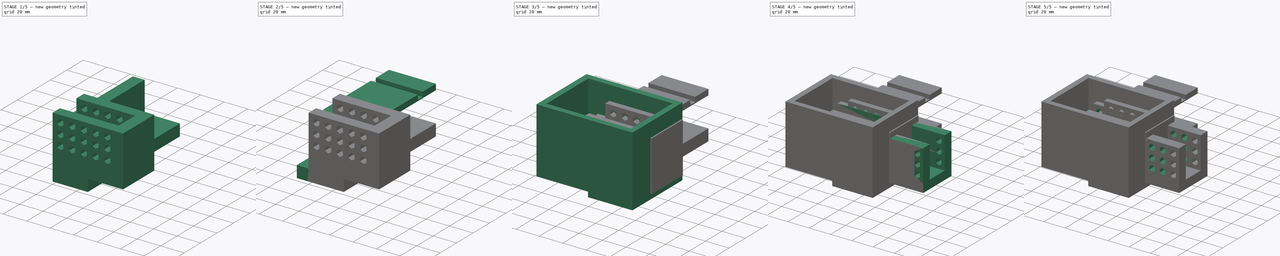
[diagram: build sequence overview — one tinted view per stage of 5, left to right]
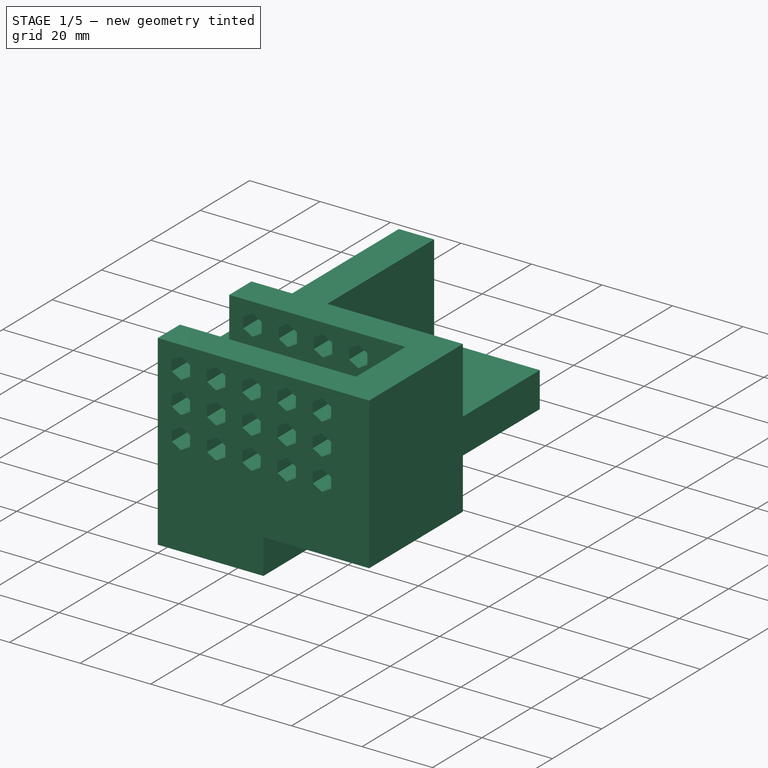
[diagram: stage 1 of 5 — iso view after this stage's code; geometry added in this stage tinted green]
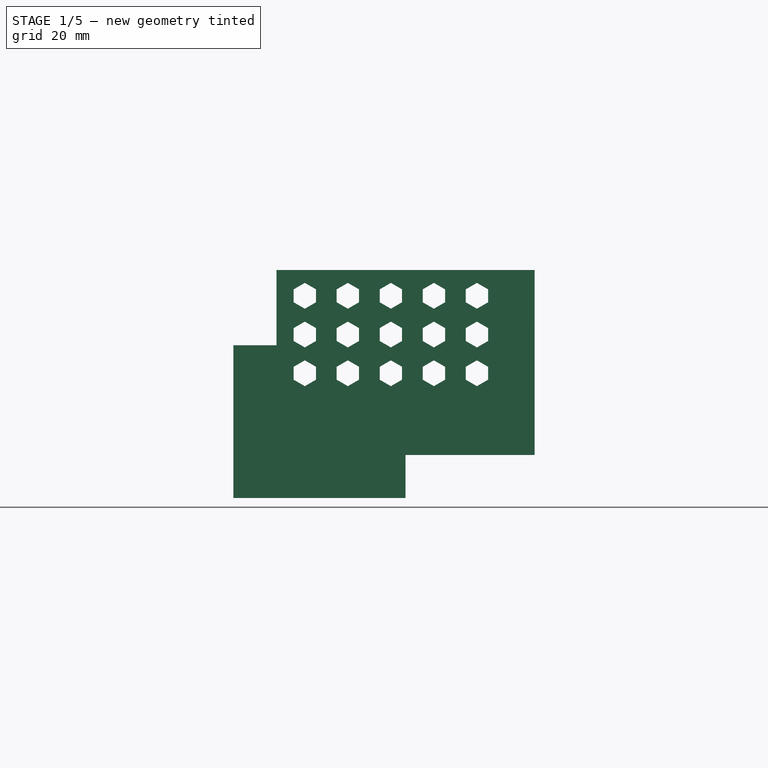
[diagram: stage 1 of 5 — front view after this stage's code; geometry added in this stage tinted green]
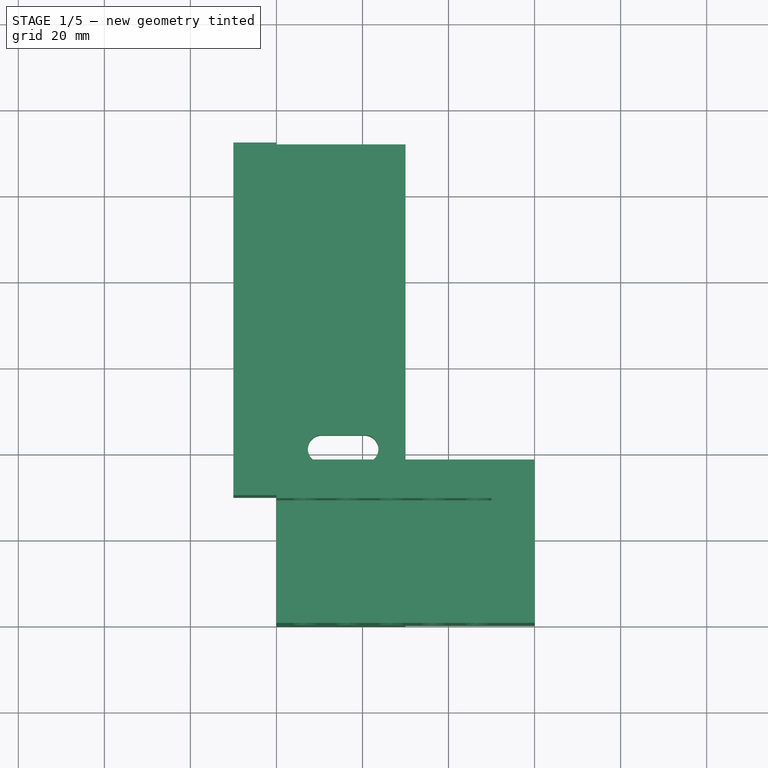
[diagram: stage 1 of 5 — top view after this stage's code; geometry added in this stage tinted green]
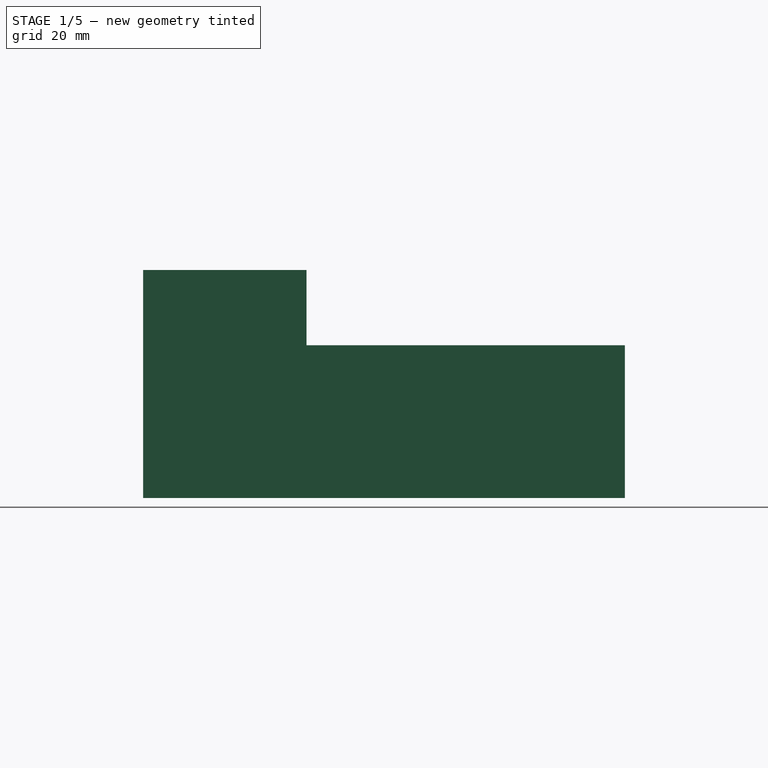
[diagram: stage 1 of 5 — right view after this stage's code; geometry added in this stage tinted green]
FCSTD DOCUMENT  (FreeCAD 1.0R39109 (Git))
Label: LedLight Button Holder
License: All rights reserved
LicenseURL: http://en.wikipedia.org/wiki/All_rights_reserved
objects: Sketcher::SketchObject×16, PartDesign::Pocket×12, PartDesign::AdditiveBox×9, PartDesign::Body×6, PartDesign::SubtractiveBox×5, PartDesign::Pad×4, PartDesign::LinearPattern×2, PartDesign::Fillet×1, PartDesign::SubtractiveCylinder×1
note: 138 computed .brp shape members not serialized (recipe doc carries the construction recipe); baked Part::Feature solids carry a one-line shape summary decoded from their .brp

FEATURE [PartDesign::Body] Body002  label="cover"
  AllowCompound = false
  Group = -> [Box003,Box004]
  Origin = -> Origin002
  Placement = pos=(-29.3,-38.5,9) rot=(0,0,1;1.5708rad)
  Tip = -> Box004
FEATURE [Sketcher::SketchObject] Sketch002
  ArcFitTolerance = 1e-06
  AttachmentSupport = -> [XY_Plane004]
  FullyConstrained = true
  MakeInternals = false
  MapMode = 5
  sketch-geometry (14):
    g0: LineSegment StartX=0 StartY=0 StartZ=0 EndX=30 EndY=0 EndZ=0
    g1: LineSegment StartX=30 StartY=0 StartZ=0 EndX=30 EndY=112 EndZ=0
    g2: LineSegment StartX=-10 StartY=112 StartZ=0 EndX=30 EndY=112 EndZ=0
    g3: LineSegment StartX=0 StartY=0 StartZ=0 EndX=0 EndY=30 EndZ=0
    g4: LineSegment StartX=-10 StartY=30 StartZ=0 EndX=0 EndY=30 EndZ=0
    g5: LineSegment StartX=-10 StartY=112 StartZ=0 EndX=-10 EndY=30 EndZ=0
    g6: ArcOfCircle CenterX=10.5 CenterY=8.7 CenterZ=0 NormalX=0 NormalY=0 NormalZ=1 AngleXU=0 Radius=3.2 StartAngle=1.5708 EndAngle=4.71239
    g7: ArcOfCircle CenterX=20.5 CenterY=8.7 CenterZ=0 NormalX=0 NormalY=0 NormalZ=1 AngleXU=0 Radius=3.2 StartAngle=4.71239 EndAngle=7.85398
    g8: LineSegment StartX=10.5 StartY=11.9 StartZ=0 EndX=20.5 EndY=11.9 EndZ=0
    g9: LineSegment StartX=10.5 StartY=5.5 StartZ=0 EndX=20.5 EndY=5.5 EndZ=0
    g10: ArcOfCircle CenterX=10.5 CenterY=41.2 CenterZ=0 NormalX=0 NormalY=0 NormalZ=1 AngleXU=0 Radius=3.2 StartAngle=1.5708 EndAngle=4.71239
    g11: ArcOfCircle CenterX=20.5 CenterY=41.2 CenterZ=0 NormalX=0 NormalY=0 NormalZ=1 AngleXU=0 Radius=3.2 StartAngle=4.71239 EndAngle=7.85398
    g12: LineSegment StartX=10.5 StartY=44.4 StartZ=0 EndX=20.5 EndY=44.4 EndZ=0
    g13: LineSegment StartX=10.5 StartY=38 StartZ=0 EndX=20.5 EndY=38 EndZ=0
  constraints (37):
    c: Distance(g0) = 30
    c: Coincident(g0,g-1)
    c: PointOnObject(g0,g-1)
    c: Distance(g1) = 112
    c: Vertical(g1)
    c: Horizontal(g2)
    c: Coincident(g0,g1)
    c: Coincident(g1,g2)
    c: Distance(g3) = 30
    c: Vertical(g3)
    c: Coincident(g0,g3)
    c: Horizontal(g4)
    c: Coincident(g3,g4)
    c: Coincident(g4,g5)
    c: Coincident(g2,g5)
    c: Tangent(g6,g8) = 1.5708
    c: Tangent(g6,g9) = -1.5708
    c: Tangent(g7,g8) = 1.5708
    c: Tangent(g7,g9) = -1.5708
    c: Equal(g6,g7)
    c: Horizontal(g9)
    c: Distance(g6,g7) = 10
    c: Radius(g6) = 3.2
    c: Distance(g6,g0) = 5.5
    c: Distance(g6,g3) = 10.5
    c: Tangent(g10,g12) = 1.5708
    c: Tangent(g10,g13) = -1.5708
    c: Tangent(g11,g12) = 1.5708
    c: Tangent(g11,g13) = -1.5708
    c: Equal(g10,g11)
    c: Horizontal(g13)
    c: Distance(g10,g11) = 10
    c: Radius(g10) = 3.2
    c: Distance(g10,g-2) = 10.5
    c: Distance(g10,g-1) = 38
    c: DistanceX(g4,g4) = 10
    c: DistanceX(g2,g2) = 40
FEATURE [PartDesign::Pad] Pad
  Direction = (0,0,1)
  Length = 10
  Length2 = 10
  Profile = -> Sketch002
  ReferenceAxis = -> Sketch002 [N_Axis]
  Reversed = true
  Suppressed = false
  Type = 0
FEATURE [Sketcher::SketchObject] Sketch003
  ArcFitTolerance = 1e-06
  AttachmentSupport = -> [Pad]
  FullyConstrained = true
  MakeInternals = false
  MapMode = 5
  sketch-geometry (4):
    g0: LineSegment StartX=-10 StartY=112 StartZ=0 EndX=-10 EndY=30 EndZ=0
    g1: LineSegment StartX=-10 StartY=30 StartZ=0 EndX=0 EndY=30 EndZ=0
    g2: LineSegment StartX=0 StartY=30 StartZ=0 EndX=0 EndY=112 EndZ=0
    g3: LineSegment StartX=0 StartY=112 StartZ=0 EndX=-10 EndY=112 EndZ=0
  constraints (12):
    c: Coincident(g0,g1)
    c: Coincident(g1,g2)
    c: Coincident(g2,g3)
    c: Coincident(g3,g0)
    c: Vertical(g0)
    c: Vertical(g2)
    c: Horizontal(g1)
    c: Horizontal(g3)
    c: PointOnObject(g1,g-2)
    c: Distance(g-1,g1) = 30
    c: DistanceX(g1,g1) = 10
    c: DistanceY(g0,g0) = 82
FEATURE [PartDesign::Pad] Pad001
  BaseFeature = -> Pad
  Direction = (0,0,1)
  Length = 25.5
  Length2 = 10
  Profile = -> Sketch003
  ReferenceAxis = -> Sketch003 [N_Axis]
  Suppressed = false
  Type = 0
FEATURE [PartDesign::Body] Body004  label="desk bracket"
  AllowCompound = false
  Group = -> [Sketch002,Pad,Sketch003,Pad001,Sketch004,Pad002,Sketch009,Pocket005,Sketch010,Pocket006,Sketch011,Pocket007,Fillet,Box019,Box020]
  Origin = -> Origin004
  Placement = pos=(-19.3,-72.5,-20.5) rot=(0,0,1;0rad)
  Tip = -> Box020
FEATURE [PartDesign::AdditiveBox] Box021
  AttacherType = Attacher::AttachEngine3D
  AttachmentSupport = -> [XY_Plane006]
  Height = 13
  Length = 60
  MapMode = 5
  Refine = true
  Suppressed = false
  Width = 38
FEATURE [Sketcher::SketchObject] Sketch014
  ArcFitTolerance = 1e-06
  AttachmentSupport = -> [Box021]
  FullyConstrained = true
  MakeInternals = false
  MapMode = 5
  Placement = pos=(0,0,13) rot=(0,0,1;0rad)
  sketch-geometry (8):
    g0: LineSegment StartX=0 StartY=38 StartZ=0 EndX=0 EndY=29 EndZ=0
    g1: LineSegment StartX=60 StartY=38 StartZ=0 EndX=0 EndY=38 EndZ=0
    g2: LineSegment StartX=0 StartY=9 StartZ=0 EndX=0 EndY=0 EndZ=0
    g3: LineSegment StartX=0 StartY=0 StartZ=0 EndX=60 EndY=0 EndZ=0
    g4: LineSegment StartX=60 StartY=0 StartZ=0 EndX=60 EndY=38 EndZ=0
    g5: LineSegment StartX=0 StartY=9 StartZ=0 EndX=50 EndY=9 EndZ=0
    g6: LineSegment StartX=0 StartY=29 StartZ=0 EndX=50 EndY=29 EndZ=0
    g7: LineSegment StartX=50 StartY=29 StartZ=0 EndX=50 EndY=9 EndZ=0
  constraints (23):
    c: Coincident(g1,g0)
    c: Vertical(g0)
    c: Horizontal(g1)
    c: Coincident(g2,g3)
    c: Coincident(g3,g4)
    c: Vertical(g2)
    c: Horizontal(g3)
    c: Coincident(g2,g-1)
    c: DistanceX(g3,g3) = 60
    c: DistanceX(g1,g1) = 60
    c: PointOnObject(g0,g-2)
    c: Coincident(g4,g1)
    c: DistanceY(g2,g2) = 9
    c: DistanceY(g0,g0) = 9
    c: DistanceY(g4,g4) = 38
    c: Distance(g5) = 50
    c: Horizontal(g5)
    c: Horizontal(g6)
    c: Equal(g5,g6)
    c: Coincident(g2,g5)
    c: Coincident(g0,g6)
    c: Coincident(g6,g7)
    c: Coincident(g5,g7)
FEATURE [PartDesign::Pad] Pad003
  BaseFeature = -> Box021
  Direction = (0,0,1)
  Length = 30
  Length2 = 10
  Profile = -> Sketch014
  ReferenceAxis = -> Sketch014 [N_Axis]
  Refine = true
  Suppressed = false
  Type = 0
FEATURE [Sketcher::SketchObject] Sketch015
  ArcFitTolerance = 1e-06
  AttachmentSupport = -> [Pad003]
  FullyConstrained = true
  MakeInternals = false
  MapMode = 5
  Placement = pos=(0,0,0) rot=(1,0,0;1.5708rad)
  sketch-geometry (21):
    g0: LineSegment StartX=49.1962 StartY=38.5 StartZ=0 EndX=46.5981 EndY=40 EndZ=0
    g1: LineSegment StartX=46.5981 StartY=40 StartZ=0 EndX=44 EndY=38.5 EndZ=0
    g2: LineSegment StartX=44 StartY=38.5 StartZ=0 EndX=44 EndY=35.5 EndZ=0
    g3: LineSegment StartX=44 StartY=35.5 StartZ=0 EndX=46.5981 EndY=34 EndZ=0
    g4: LineSegment StartX=46.5981 StartY=34 StartZ=0 EndX=49.1962 EndY=35.5 EndZ=0
    g5: LineSegment StartX=49.1962 StartY=35.5 StartZ=0 EndX=49.1962 EndY=38.5 EndZ=0
    g6: Circle [constr] CenterX=46.5981 CenterY=37 CenterZ=0 NormalX=0 NormalY=0 NormalZ=1 AngleXU=0 Radius=3
    g7: LineSegment StartX=49.1962 StartY=29.5 StartZ=0 EndX=46.5981 EndY=31 EndZ=0
    g8: LineSegment StartX=46.5981 StartY=31 StartZ=0 EndX=44 EndY=29.5 EndZ=0
    g9: LineSegment StartX=44 StartY=29.5 StartZ=0 EndX=44 EndY=26.5 EndZ=0
    g10: LineSegment StartX=44 StartY=26.5 StartZ=0 EndX=46.5981 EndY=25 EndZ=0
    g11: LineSegment StartX=46.5981 StartY=25 StartZ=0 EndX=49.1962 EndY=26.5 EndZ=0
    g12: LineSegment StartX=49.1962 StartY=26.5 StartZ=0 EndX=49.1962 EndY=29.5 EndZ=0
    g13: Circle [constr] CenterX=46.5981 CenterY=28 CenterZ=0 NormalX=0 NormalY=0 NormalZ=1 AngleXU=0 Radius=3
    g14: LineSegment StartX=49.1962 StartY=20.5 StartZ=0 EndX=46.5981 EndY=22 EndZ=0
    g15: LineSegment StartX=46.5981 StartY=22 StartZ=0 EndX=44 EndY=20.5 EndZ=0
    g16: LineSegment StartX=44 StartY=20.5 StartZ=0 EndX=44 EndY=17.5 EndZ=0
    g17: LineSegment StartX=44 StartY=17.5 StartZ=0 EndX=46.5981 EndY=16 EndZ=0
    g18: LineSegment StartX=46.5981 StartY=16 StartZ=0 EndX=49.1962 EndY=17.5 EndZ=0
    g19: LineSegment StartX=49.1962 StartY=17.5 StartZ=0 EndX=49.1962 EndY=20.5 EndZ=0
    g20: Circle [constr] CenterX=46.5981 CenterY=19 CenterZ=0 NormalX=0 NormalY=0 NormalZ=1 AngleXU=0 Radius=3
  constraints (51):
    c: Coincident(g0,g1)
    c: Coincident(g1,g2)
    c: Coincident(g2,g3)
    c: Coincident(g3,g4)
    c: Coincident(g4,g5)
    c: Coincident(g5,g0)
    c: Equal(g0, g1-g5) x5
    c: PointOnObject(g0,g6)
    c: PointOnObject(g1,g6)
    c: PointOnObject(g2,g6)
    c: PointOnObject(g3,g6)
    c: PointOnObject(g4,g6)
    c: PointOnObject(g5,g6)
    c: Radius(g6) = 3
    c: Coincident(g7,g8)
    c: Coincident(g8,g9)
    c: Coincident(g9,g10)
    c: Coincident(g10,g11)
    c: Coincident(g11,g12)
    c: Coincident(g12,g7)
    c: Equal(g7, g8-g12) x5
    c: PointOnObject(g7,g13)
    c: PointOnObject(g8,g13)
    c: PointOnObject(g9,g13)
    c: PointOnObject(g10,g13)
    c: PointOnObject(g11,g13)
    c: PointOnObject(g12,g13)
    c: Radius(g13) = 3
    c: Coincident(g14,g15)
    c: Coincident(g15,g16)
    c: Coincident(g16,g17)
    c: Coincident(g17,g18)
    c: Coincident(g18,g19)
    c: Coincident(g19,g14)
    c: Equal(g14, g15-g19) x5
    c: PointOnObject(g14,g20)
    c: PointOnObject(g15,g20)
    c: PointOnObject(g16,g20)
    c: PointOnObject(g17,g20)
    c: PointOnObject(g18,g20)
    c: PointOnObject(g19,g20)
    c: Radius(g20) = 3
    c: Parallel(g2,g-2)
    c: DistanceY(g-1,g0) = 38.5
    c: Distance(g7,g3) = 3
    c: Distance(g10,g14) = 3
    c: Parallel(g9,g-2)
    c: Parallel(g16,g-2)
    c: Distance(g2,g-2) = 44
    c: Distance(g9,g-2) = 44
    c: Distance(g16,g-2) = 44
FEATURE [PartDesign::Pocket] Pocket010
  BaseFeature = -> Pad003
  Direction = (0,1,-2e-16)
  Length = 5
  Length2 = 5
  Profile = -> Sketch015
  ReferenceAxis = -> Sketch015 [N_Axis]
  Refine = true
  Suppressed = false
  Type = 1
FEATURE [PartDesign::LinearPattern] LinearPattern001
  BaseFeature = -> Pocket010
  Direction = -> Sketch015 [H_Axis]
  Length = 100
  Mode = 0
  Occurrences = 11
  Offset = 10
  Originals = -> [Pocket010]
  Refine = true
  Reversed = true
  Suppressed = false
  TransformMode = 0
FEATURE [Sketcher::SketchObject] Sketch016
  ArcFitTolerance = 1e-06
  AttachmentSupport = -> [LinearPattern001]
  FullyConstrained = true
  MakeInternals = false
  MapMode = 5
  Placement = pos=(0,38,0) rot=(0,0.707107,0.707107;3.14159rad)
  sketch-geometry (2):
    g0: Circle CenterX=-50 CenterY=6 CenterZ=0 NormalX=0 NormalY=0 NormalZ=1 AngleXU=0 Radius=2
    g1: Circle CenterX=-15 CenterY=6 CenterZ=0 NormalX=0 NormalY=0 NormalZ=1 AngleXU=0 Radius=2
  constraints (6):
    c: Diameter(g0) = 4
    c: Diameter(g1) = 4
    c: Distance(g1,g-2) = 15
    c: Distance(g0,g-2) = 50
    c: Distance(g0,g-1) = 6
    c: DistanceY(g-1,g1) = 6
FEATURE [PartDesign::Pocket] Pocket011
  BaseFeature = -> LinearPattern001
  Direction = (0,-1,2e-16)
  Length = 15
  Length2 = 5
  Profile = -> Sketch016
  ReferenceAxis = -> Sketch016 [N_Axis]
  Refine = true
  Suppressed = false
  Type = 0
FEATURE [PartDesign::Body] Body006  label="laptop bracket 2"
  AllowCompound = false
  Group = -> [Box021,Sketch014,Pad003,Sketch015,Pocket010,LinearPattern001,Sketch016,Pocket011]
  Origin = -> Origin006
  Placement = pos=(54,1.5,5) rot=(0,0,1;0rad)
  Tip = -> Pocket011
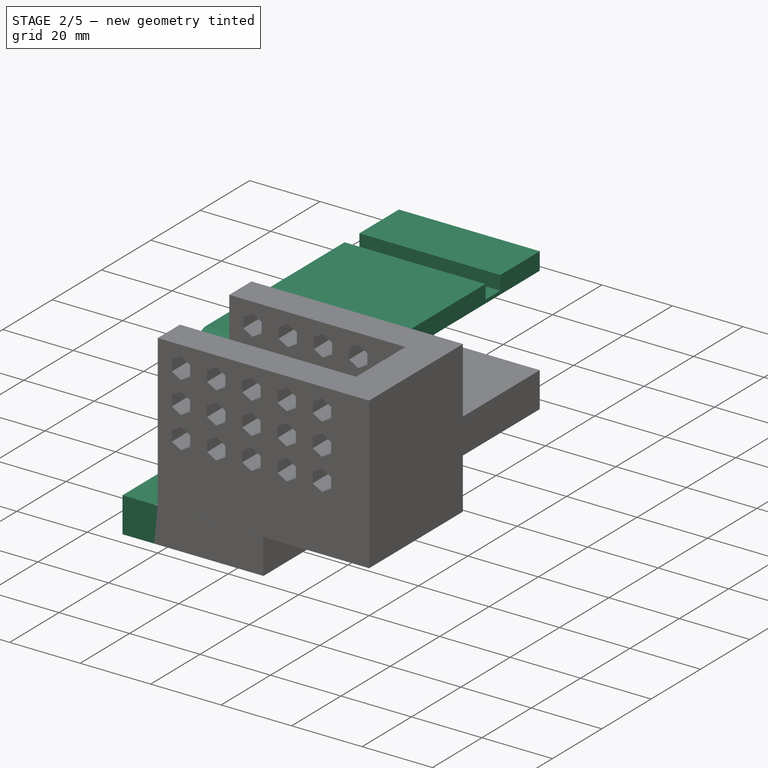
[diagram: stage 2 of 5 — iso view after this stage's code; geometry added in this stage tinted green]
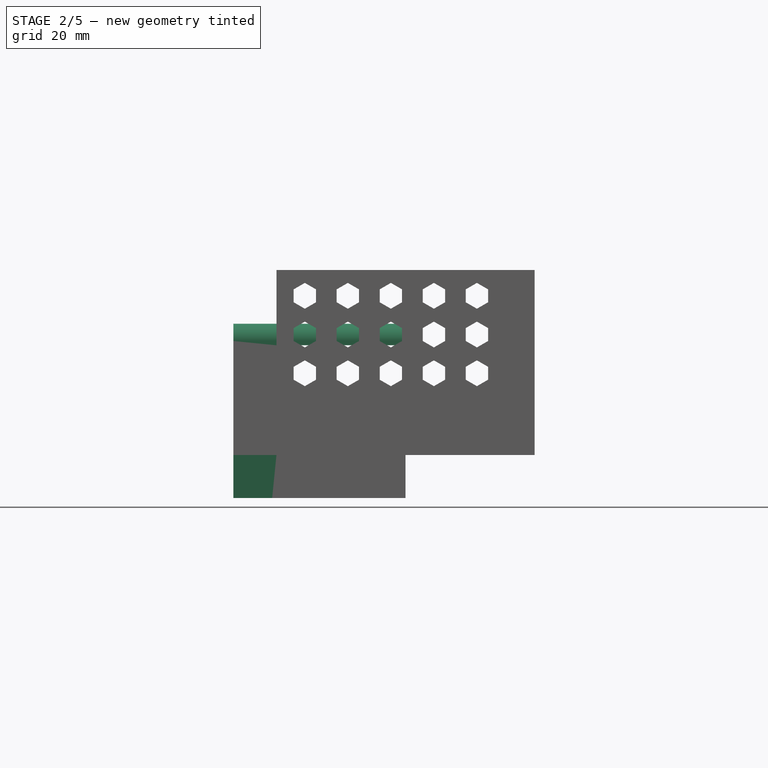
[diagram: stage 2 of 5 — front view after this stage's code; geometry added in this stage tinted green]
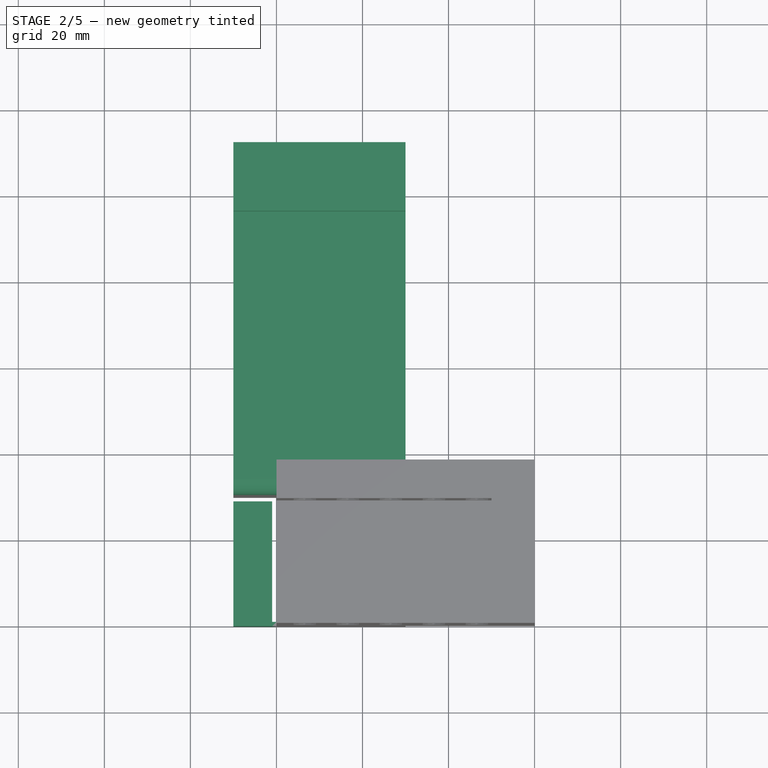
[diagram: stage 2 of 5 — top view after this stage's code; geometry added in this stage tinted green]
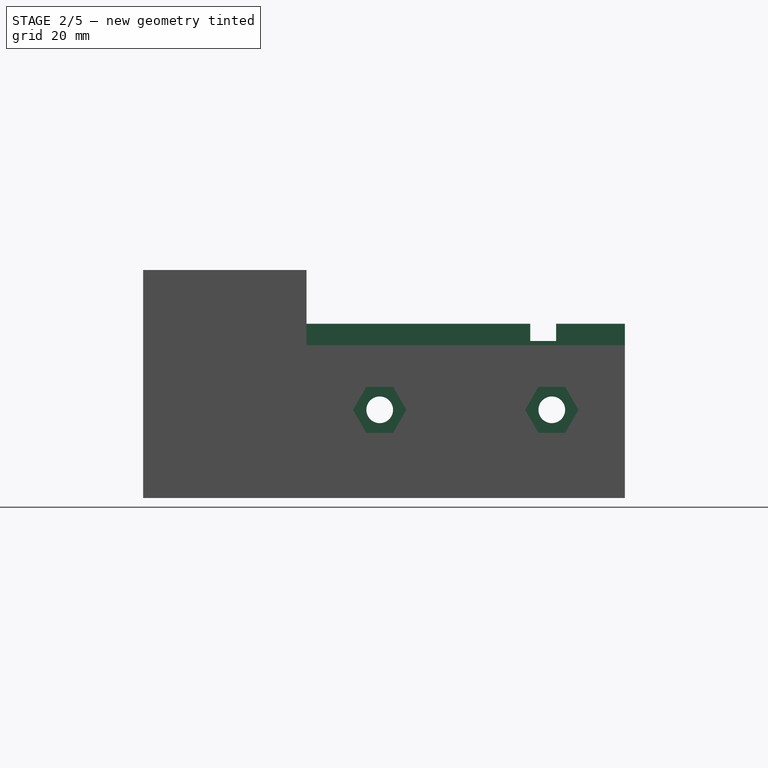
[diagram: stage 2 of 5 — right view after this stage's code; geometry added in this stage tinted green]
FEATURE [Sketcher::SketchObject] Sketch004
  ArcFitTolerance = 1e-06
  AttachmentSupport = -> [Pad001]
  FullyConstrained = true
  MakeInternals = false
  MapMode = 5
  Placement = pos=(0,0,25.5) rot=(0,0,1;0rad)
  sketch-geometry (4):
    g0: LineSegment StartX=-10 StartY=30 StartZ=0 EndX=30 EndY=30 EndZ=0
    g1: LineSegment StartX=30 StartY=30 StartZ=0 EndX=30 EndY=112 EndZ=0
    g2: LineSegment StartX=30 StartY=112 StartZ=0 EndX=-10 EndY=112 EndZ=0
    g3: LineSegment StartX=-10 StartY=112 StartZ=0 EndX=-10 EndY=30 EndZ=0
  constraints (12):
    c: Coincident(g0,g1)
    c: Coincident(g1,g2)
    c: Coincident(g2,g3)
    c: Coincident(g3,g0)
    c: Horizontal(g0)
    c: Horizontal(g2)
    c: Vertical(g1)
    c: Vertical(g3)
    c: DistanceX(g0,g0) = 40
    c: Distance(g0,g-1) = 30
    c: DistanceX(g0,g-1) = 10
    c: DistanceY(g3,g3) = 82
FEATURE [PartDesign::Pad] Pad002
  BaseFeature = -> Pad001
  Direction = (0,0,1)
  Length = 5
  Length2 = 10
  Profile = -> Sketch004
  ReferenceAxis = -> Sketch004 [N_Axis]
  Suppressed = false
  Type = 0
FEATURE [PartDesign::Body] Body005  label="laptop bracket 1"
  AllowCompound = false
  Group = -> [Box012,Box013,Box014,Sketch006,Pocket002,LinearPattern,Sketch007,Pocket003,Sketch008,Pocket004]
  Origin = -> Origin005
  Placement = pos=(-80.3,1.5,10) rot=(0,0,1;0rad)
  Tip = -> Pocket004
FEATURE [Sketcher::SketchObject] Sketch009
  ArcFitTolerance = 1e-06
  AttachmentSupport = -> [Pad002]
  FullyConstrained = true
  MakeInternals = false
  MapMode = 5
  Placement = pos=(0,0,30.5) rot=(0,0,1;0rad)
  sketch-geometry (4):
    g0: LineSegment StartX=-13 StartY=96 StartZ=0 EndX=-13 EndY=90 EndZ=0
    g1: LineSegment StartX=-13 StartY=90 StartZ=0 EndX=30 EndY=90 EndZ=0
    g2: LineSegment StartX=30 StartY=90 StartZ=0 EndX=30 EndY=96 EndZ=0
    g3: LineSegment StartX=30 StartY=96 StartZ=0 EndX=-13 EndY=96 EndZ=0
  constraints (12):
    c: Coincident(g0,g1)
    c: Coincident(g1,g2)
    c: Coincident(g2,g3)
    c: Coincident(g3,g0)
    c: Vertical(g0)
    c: Vertical(g2)
    c: Horizontal(g1)
    c: Horizontal(g3)
    c: Distance(g0,g2) = 43
    c: Distance(g1,g3) = 6
    c: Distance(g-1,g1) = 90
    c: Distance(g0,g-2) = 13
FEATURE [PartDesign::Pocket] Pocket005
  AlongSketchNormal = false
  BaseFeature = -> Pad002
  Direction = (0,0,-1)
  Length = 4
  Length2 = 5
  Offset = -2
  Profile = -> Sketch009
  ReferenceAxis = -> Sketch009 [N_Axis]
  Suppressed = false
  Type = 0
FEATURE [Sketcher::SketchObject] Sketch010
  ArcFitTolerance = 1e-06
  AttachmentSupport = -> [Pocket005]
  FullyConstrained = true
  MakeInternals = false
  MapMode = 5
  Placement = pos=(0,0,0) rot=(0.57735,0.57735,0.57735;2.0944rad)
  sketch-geometry (2):
    g0: Circle CenterX=55 CenterY=10.5 CenterZ=0 NormalX=0 NormalY=0 NormalZ=1 AngleXU=0 Radius=3.1
    g1: Circle CenterX=95 CenterY=10.5 CenterZ=0 NormalX=0 NormalY=0 NormalZ=1 AngleXU=0 Radius=3.1
  constraints (6):
    c: Diameter(g0) = 6.2
    c: Equal(g0,g1)
    c: DistanceX(g-1,g0) = 55
    c: DistanceX(g-1,g1) = 95
    c: DistanceY(g-1,g0) = 10.5
    c: DistanceY(g-1,g1) = 10.5
FEATURE [PartDesign::Pocket] Pocket006
  BaseFeature = -> Pocket005
  Direction = (-1,0,0)
  Length = 5
  Length2 = 5
  Profile = -> Sketch010
  ReferenceAxis = -> Sketch010 [N_Axis]
  Suppressed = false
  Type = 1
FEATURE [Sketcher::SketchObject] Sketch011
  ArcFitTolerance = 1e-06
  AttachmentSupport = -> [Pocket006]
  FullyConstrained = true
  MakeInternals = false
  MapMode = 5
  Placement = pos=(0,0,0) rot=(0.57735,0.57735,0.57735;2.0944rad)
  sketch-geometry (14):
    g0: LineSegment StartX=61.2 StartY=10.5 StartZ=0 EndX=58.1 EndY=15.8694 EndZ=0
    g1: LineSegment StartX=58.1 StartY=15.8694 StartZ=0 EndX=51.9 EndY=15.8694 EndZ=0
    g2: LineSegment StartX=51.9 StartY=15.8694 StartZ=0 EndX=48.8 EndY=10.5 EndZ=0
    g3: LineSegment StartX=48.8 StartY=10.5 StartZ=0 EndX=51.9 EndY=5.13064 EndZ=0
    g4: LineSegment StartX=51.9 StartY=5.13064 StartZ=0 EndX=58.1 EndY=5.13064 EndZ=0
    g5: LineSegment StartX=58.1 StartY=5.13064 StartZ=0 EndX=61.2 EndY=10.5 EndZ=0
    g6: Circle [constr] CenterX=55 CenterY=10.5 CenterZ=0 NormalX=0 NormalY=0 NormalZ=1 AngleXU=0 Radius=6.2
    g7: LineSegment StartX=101.2 StartY=10.5 StartZ=0 EndX=98.1 EndY=15.8694 EndZ=0
    g8: LineSegment StartX=98.1 StartY=15.8694 StartZ=0 EndX=91.9 EndY=15.8694 EndZ=0
    g9: LineSegment StartX=91.9 StartY=15.8694 StartZ=0 EndX=88.8 EndY=10.5 EndZ=0
    g10: LineSegment StartX=88.8 StartY=10.5 StartZ=0 EndX=91.9 EndY=5.13064 EndZ=0
    g11: LineSegment StartX=91.9 StartY=5.13064 StartZ=0 EndX=98.1 EndY=5.13064 EndZ=0
    g12: LineSegment StartX=98.1 StartY=5.13064 StartZ=0 EndX=101.2 EndY=10.5 EndZ=0
    g13: Circle [constr] CenterX=95 CenterY=10.5 CenterZ=0 NormalX=0 NormalY=0 NormalZ=1 AngleXU=0 Radius=6.2
  constraints (34):
    c: Coincident(g0,g1)
    c: Coincident(g1,g2)
    c: Coincident(g2,g3)
    c: Coincident(g3,g4)
    c: Coincident(g4,g5)
    c: Coincident(g5,g0)
    c: Equal(g0, g1-g5) x5
    c: PointOnObject(g0,g6)
    c: PointOnObject(g1,g6)
    c: PointOnObject(g2,g6)
    c: PointOnObject(g3,g6)
    c: PointOnObject(g4,g6)
    c: PointOnObject(g5,g6)
    c: Radius(g6) = 6.2
    c: DistanceY(g-1,g6) = 10.5
    c: DistanceX(g-1,g6) = 55
    c: Parallel(g4,g-1)
    c: Coincident(g7,g8)
    c: Coincident(g8,g9)
    c: Coincident(g9,g10)
    c: Coincident(g10,g11)
    c: Coincident(g11,g12)
    c: Coincident(g12,g7)
    c: Equal(g7, g8-g12) x5
    c: PointOnObject(g7,g13)
    c: PointOnObject(g8,g13)
    c: PointOnObject(g9,g13)
    c: PointOnObject(g10,g13)
    c: PointOnObject(g11,g13)
    c: PointOnObject(g12,g13)
    c: Radius(g13) = 6.2
    c: Parallel(g11,g-1)
    c: DistanceY(g-1,g13) = 10.5
    c: DistanceX(g-1,g13) = 95
FEATURE [PartDesign::Pocket] Pocket007
  BaseFeature = -> Pocket006
  Direction = (-1,0,0)
  Length = 5
  Length2 = 5
  Profile = -> Sketch011
  ReferenceAxis = -> Sketch011 [N_Axis]
  Suppressed = false
  Type = 0
FEATURE [PartDesign::Fillet] Fillet
  Base = -> Pocket007 [Edge96]
  BaseFeature = -> Pocket007
  Radius = 4
  SupportTransform = false
  Suppressed = false
  UseAllEdges = false
FEATURE [PartDesign::Body] Body  label="socket"
  AllowCompound = false
  Group = -> [Sketch,Box,Box015,Pocket,Box016,Box017,Box018,Cylinder,Sketch012,Pocket008,Sketch013,Pocket009]
  Origin = -> Origin
  Placement = pos=(-68.5,-19.3,5.5) rot=(0.707107,0.707107,0;3.14159rad)
  Tip = -> Pocket009
FEATURE [PartDesign::AdditiveBox] Box019
  AttacherType = Attacher::AttachEngine3D
  AttachmentOffset = pos=(-10,0,-10) rot=(0,0,1;0rad)
  AttachmentSupport = -> [XY_Plane004]
  BaseFeature = -> Fillet
  Height = 10
  Length = 10
  MapMode = 5
  Placement = pos=(-10,0,-10) rot=(0,0,1;0rad)
  Suppressed = false
  Width = 1
FEATURE [PartDesign::AdditiveBox] Box020
  AttacherType = Attacher::AttachEngine3D
  AttachmentOffset = pos=(-10,0,-10) rot=(0,0,1;0rad)
  AttachmentSupport = -> [XY_Plane004]
  BaseFeature = -> Box019
  Height = 10
  Length = 9
  MapMode = 5
  Placement = pos=(-10,0,-10) rot=(0,0,1;0rad)
  Suppressed = false
  Width = 29
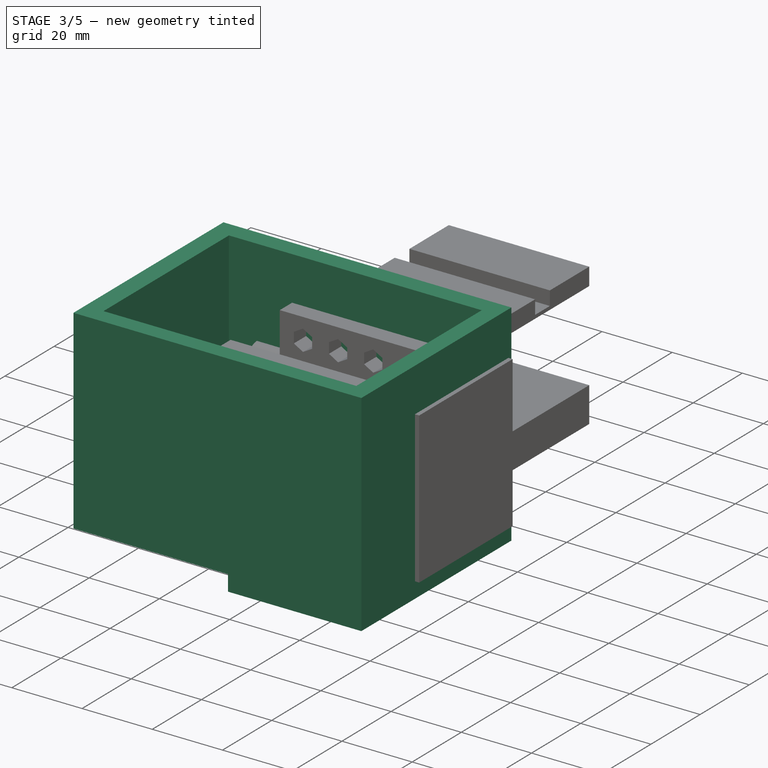
[diagram: stage 3 of 5 — iso view after this stage's code; geometry added in this stage tinted green]
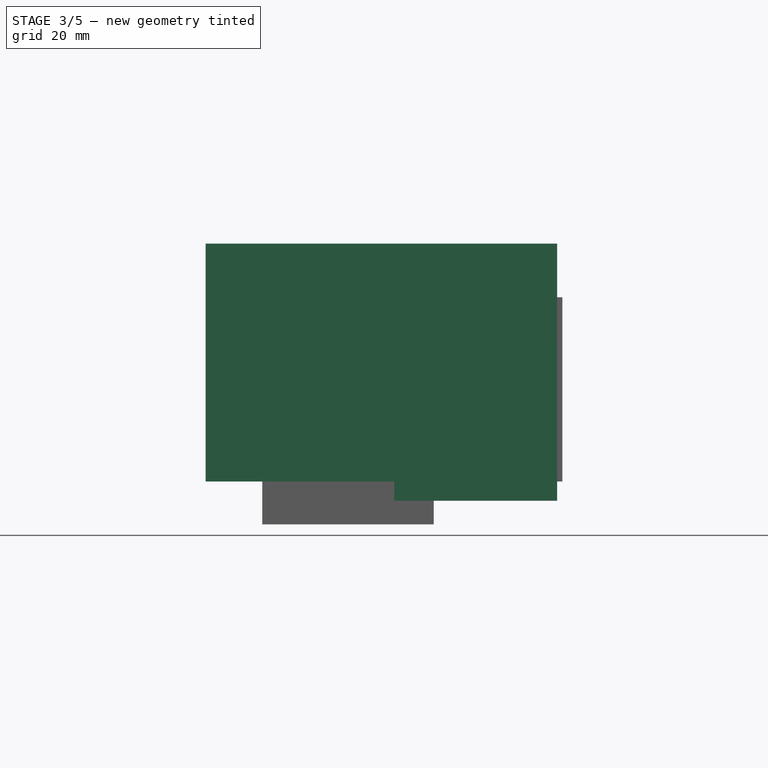
[diagram: stage 3 of 5 — front view after this stage's code; geometry added in this stage tinted green]
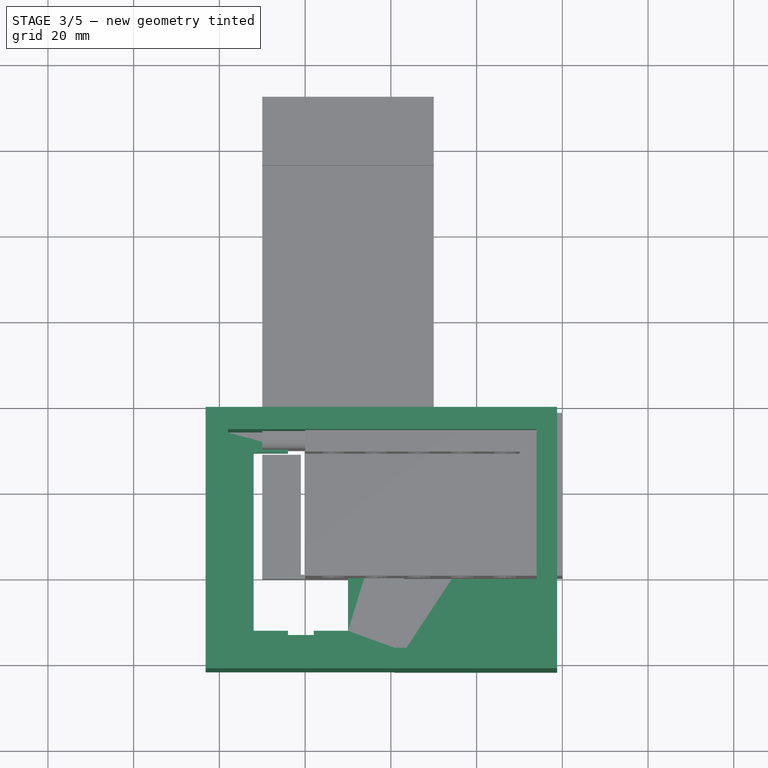
[diagram: stage 3 of 5 — top view after this stage's code; geometry added in this stage tinted green]
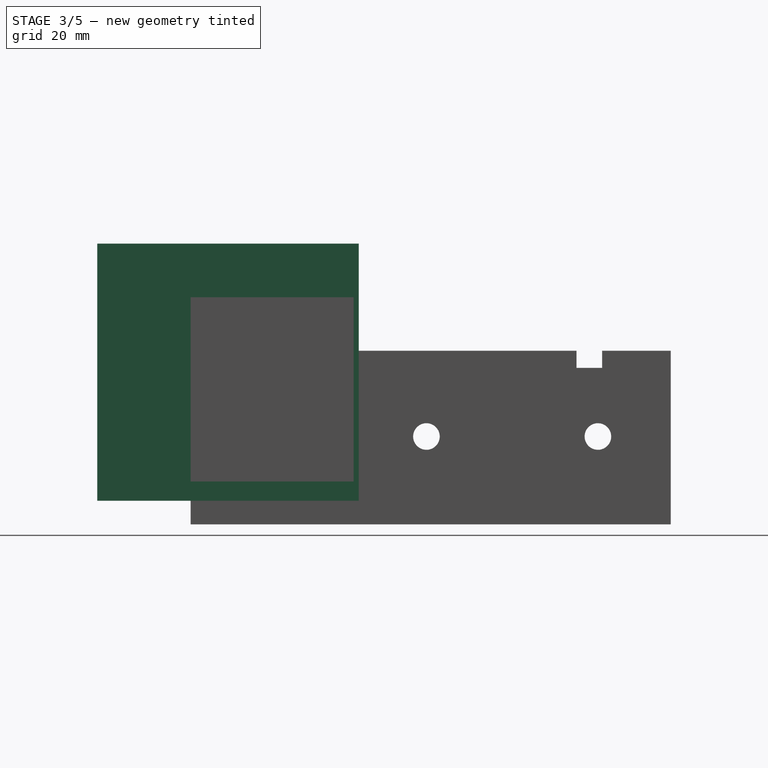
[diagram: stage 3 of 5 — right view after this stage's code; geometry added in this stage tinted green]
FEATURE [Sketcher::SketchObject] Sketch
  ArcFitTolerance = 0
  AttachmentSupport = -> [XY_Plane]
  FullyConstrained = true
  MakeInternals = false
  MapMode = 5
  sketch-geometry (12):
    g0: LineSegment StartX=-12 StartY=29.25 StartZ=0 EndX=-4 EndY=29.25 EndZ=0
    g1: LineSegment StartX=2 StartY=29.25 StartZ=0 EndX=10 EndY=29.25 EndZ=0
    g2: LineSegment StartX=-4 StartY=29.25 StartZ=0 EndX=-4 EndY=30.25 EndZ=0
    g3: LineSegment StartX=2 StartY=30.25 StartZ=0 EndX=2 EndY=29.25 EndZ=0
    g4: LineSegment StartX=-4 StartY=30.25 StartZ=0 EndX=2 EndY=30.25 EndZ=0
    g5: LineSegment StartX=10 StartY=29.25 StartZ=0 EndX=10 EndY=-12.25 EndZ=0
    g6: LineSegment StartX=-12 StartY=29.25 StartZ=0 EndX=-12 EndY=-12.25 EndZ=0
    g7: LineSegment StartX=-12 StartY=-12.25 StartZ=0 EndX=-4 EndY=-12.25 EndZ=0
    g8: LineSegment StartX=10 StartY=-12.25 StartZ=0 EndX=2 EndY=-12.25 EndZ=0
    g9: LineSegment StartX=2 StartY=-12.25 StartZ=0 EndX=2 EndY=-13.25 EndZ=0
    g10: LineSegment StartX=2 StartY=-13.25 StartZ=0 EndX=-4 EndY=-13.25 EndZ=0
    g11: LineSegment StartX=-4 StartY=-13.25 StartZ=0 EndX=-4 EndY=-12.25 EndZ=0
  constraints (37):
    c: Horizontal(g0)
    c: Horizontal(g1)
    c: Vertical(g2)
    c: Vertical(g6)
    c: Vertical(g11)
    c: Parallel(g6,g5)
    c: Equal(g6,g5)
    c: DistanceY(g5,g5) = 41.5
    c: Parallel(g0,g7)
    c: Parallel(g7,g8)
    c: Equal(g1,g0)
    c: Equal(g0,g7)
    c: Equal(g7,g8)
    c: Coincident(g5,g1)
    c: DistanceX(g1,g1) = 8
    c: DistanceY(g-1,g1) = 29.25
    c: DistanceX(g-1,g1) = 10
    c: Parallel(g-2,g3)
    c: Parallel(g2,g9)
    c: Equal(g3,g2)
    c: Equal(g2,g9)
    c: Equal(g9,g11)
    c: DistanceY(g3,g3) = 1
    c: Coincident(g1,g3)
    c: Parallel(g4,g-1)
    c: Parallel(g4,g10)
    c: Equal(g4,g10)
    c: Coincident(g3,g4)
    c: DistanceX(g4,g4) = 6
    c: Coincident(g4,g2)
    c: Coincident(g2,g0)
    c: Coincident(g0,g6)
    c: Coincident(g5,g8)
    c: Coincident(g8,g9)
    c: Coincident(g9,g10)
    c: Coincident(g10,g11)
    c: Coincident(g11,g7)
FEATURE [PartDesign::AdditiveBox] Box
  AttacherType = Attacher::AttachEngine3D
  AttachmentOffset = pos=(-23.2,-21.8,-4.5) rot=(0,0,1;0rad)
  AttachmentSupport = -> [XY_Plane]
  Height = 60
  Length = 82
  MapMode = 5
  Placement = pos=(-23.2,-21.8,-4.5) rot=(0,0,1;0rad)
  Suppressed = false
  Width = 61
FEATURE [PartDesign::SubtractiveBox] Box015
  AttacherType = Attacher::AttachEngine3D
  AttachmentOffset = pos=(-24,-22,-4.5) rot=(0,0,1;0rad)
  AttachmentSupport = -> [XY_Plane]
  BaseFeature = -> Box
  Height = 4.5
  Length = 44.8
  MapMode = 5
  Placement = pos=(-24,-22,-4.5) rot=(0,0,1;0rad)
  Suppressed = false
  Width = 61.2
FEATURE [PartDesign::Pocket] Pocket
  BaseFeature = -> Box015
  Direction = (0,0,-1)
  Length = 10
  Length2 = 5
  Placement = pos=(-24,-22,-4.5) rot=(0,0,1;0rad)
  Profile = -> Sketch
  ReferenceAxis = -> Sketch [N_Axis]
  Reversed = true
  Suppressed = false
  Type = 0
FEATURE [PartDesign::SubtractiveBox] Box016
  AttacherType = Attacher::AttachEngine3D
  AttachmentOffset = pos=(-18,-17,10) rot=(0,0,1;0rad)
  AttachmentSupport = -> [XY_Plane]
  BaseFeature = -> Pocket
  Height = 46
  Length = 72
  MapMode = 5
  Placement = pos=(-18,-17,10) rot=(0,0,1;0rad)
  Suppressed = false
  Width = 51
FEATURE [PartDesign::SubtractiveBox] Box017
  AttacherType = Attacher::AttachEngine3D
  AttachmentOffset = pos=(23,30,-6) rot=(0,0,1;0rad)
  AttachmentSupport = -> [XY_Plane]
  BaseFeature = -> Box016
  Height = 16
  Length = 31
  MapMode = 5
  Placement = pos=(23,30,-6) rot=(0,0,1;0rad)
  Suppressed = false
  Width = 10
FEATURE [PartDesign::SubtractiveBox] Box018
  AttacherType = Attacher::AttachEngine3D
  AttachmentOffset = pos=(23,-17,0) rot=(0,0,1;0rad)
  AttachmentSupport = -> [XY_Plane]
  BaseFeature = -> Box017
  Height = 10
  Length = 31
  MapMode = 5
  Placement = pos=(23,-17,0) rot=(0,0,1;0rad)
  Suppressed = false
  Width = 51
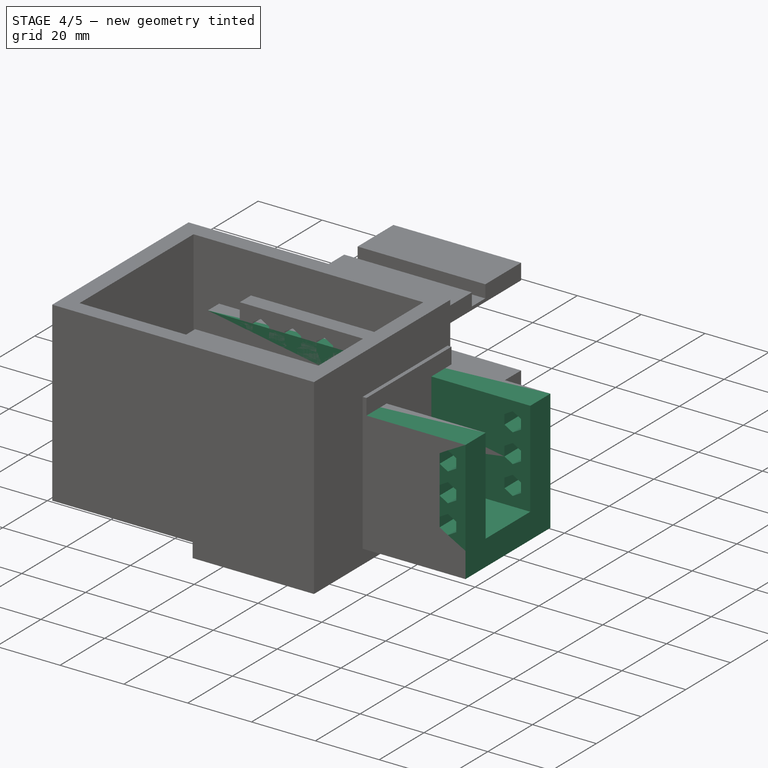
[diagram: stage 4 of 5 — iso view after this stage's code; geometry added in this stage tinted green]
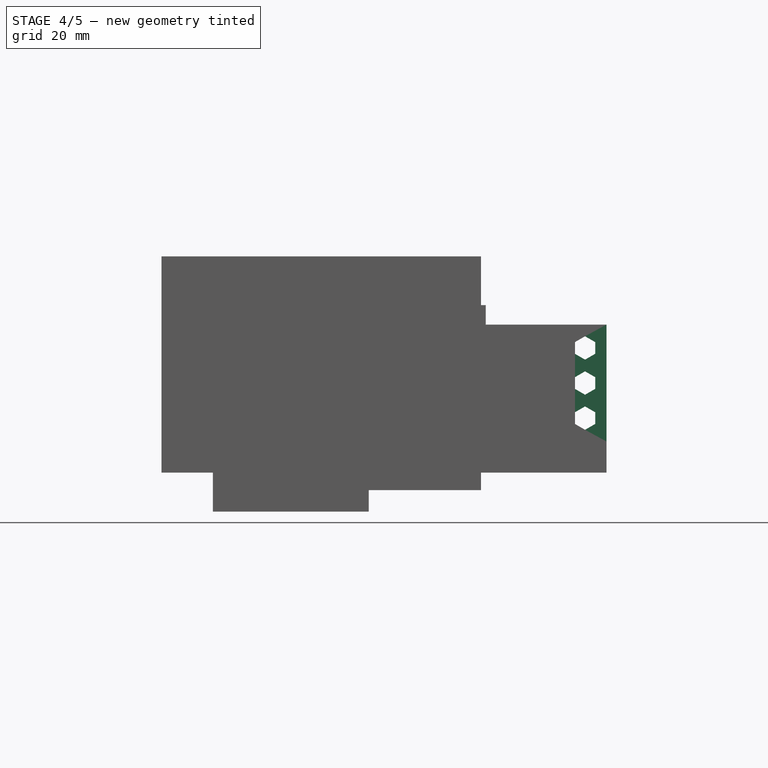
[diagram: stage 4 of 5 — front view after this stage's code; geometry added in this stage tinted green]
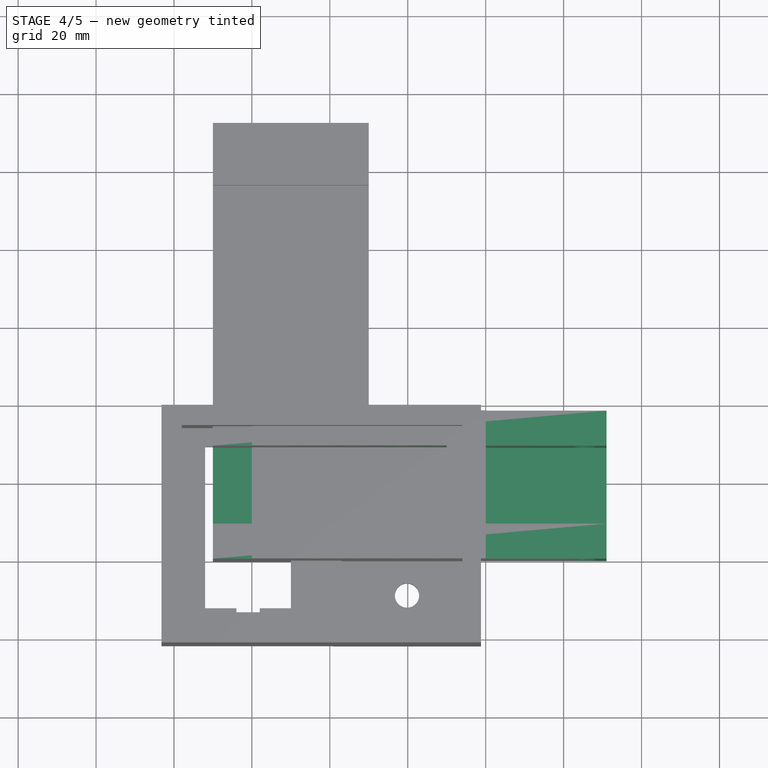
[diagram: stage 4 of 5 — top view after this stage's code; geometry added in this stage tinted green]
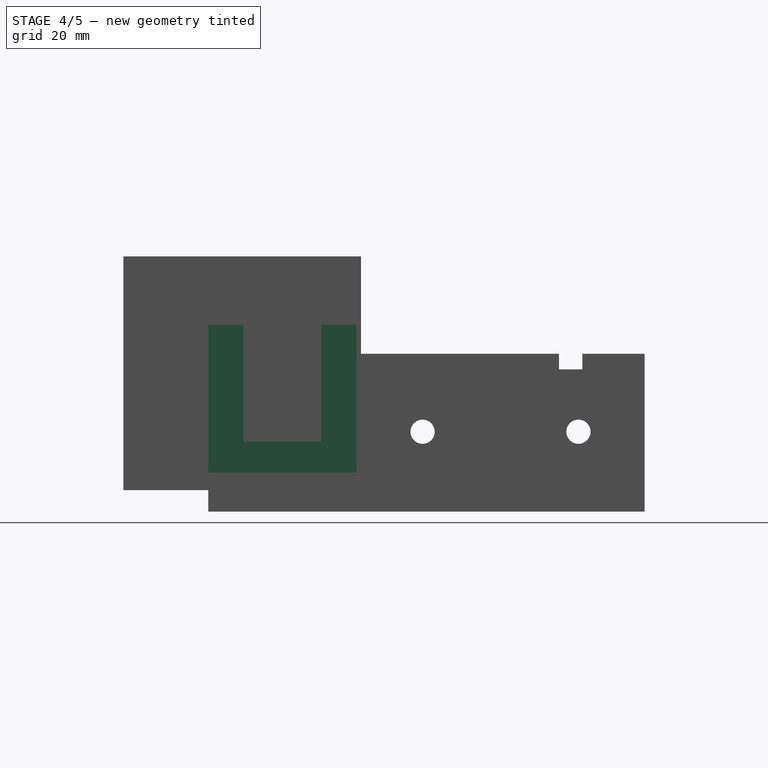
[diagram: stage 4 of 5 — right view after this stage's code; geometry added in this stage tinted green]
FEATURE [PartDesign::AdditiveBox] Box012
  AttacherType = Attacher::AttachEngine3D
  AttachmentOffset = pos=(-10,0,0) rot=(0,0,1;0rad)
  AttachmentSupport = -> [XY_Plane005]
  Height = 8
  Length = 101
  MapMode = 5
  Placement = pos=(-10,0,0) rot=(0,0,1;0rad)
  Suppressed = false
  Width = 38
FEATURE [PartDesign::AdditiveBox] Box013
  AttacherType = Attacher::AttachEngine3D
  AttachmentOffset = pos=(-10,0,8) rot=(0,0,1;0rad)
  AttachmentSupport = -> [XY_Plane005]
  BaseFeature = -> Box012
  Height = 30
  Length = 101
  MapMode = 5
  Placement = pos=(-10,0,8) rot=(0,0,1;0rad)
  Suppressed = false
  Width = 9
FEATURE [PartDesign::AdditiveBox] Box014
  AttacherType = Attacher::AttachEngine3D
  AttachmentOffset = pos=(-10,29,8) rot=(0,0,1;0rad)
  AttachmentSupport = -> [XY_Plane005]
  BaseFeature = -> Box013
  Height = 30
  Length = 101
  MapMode = 5
  Placement = pos=(-10,29,8) rot=(0,0,1;0rad)
  Suppressed = false
  Width = 9
FEATURE [Sketcher::SketchObject] Sketch006
  ArcFitTolerance = 1e-06
  AttachmentSupport = -> [Box014]
  FullyConstrained = true
  MakeInternals = false
  MapMode = 5
  Placement = pos=(-10,38,8) rot=(0,0.707107,0.707107;3.14159rad)
  sketch-geometry (21):
    g0: LineSegment StartX=-95.5 StartY=21 StartZ=0 EndX=-92.9019 EndY=22.5 EndZ=0
    g1: LineSegment StartX=-92.9019 StartY=22.5 StartZ=0 EndX=-92.9019 EndY=25.5 EndZ=0
    g2: LineSegment StartX=-92.9019 StartY=25.5 StartZ=0 EndX=-95.5 EndY=27 EndZ=0
    g3: LineSegment StartX=-95.5 StartY=27 StartZ=0 EndX=-98.0981 EndY=25.5 EndZ=0
    g4: LineSegment StartX=-98.0981 StartY=25.5 StartZ=0 EndX=-98.0981 EndY=22.5 EndZ=0
    g5: LineSegment StartX=-98.0981 StartY=22.5 StartZ=0 EndX=-95.5 EndY=21 EndZ=0
    g6: Circle [constr] CenterX=-95.5 CenterY=24 CenterZ=0 NormalX=0 NormalY=0 NormalZ=1 AngleXU=0 Radius=3
    g7: LineSegment StartX=-92.9019 StartY=16.5 StartZ=0 EndX=-95.5 EndY=18 EndZ=0
    g8: LineSegment StartX=-95.5 StartY=18 StartZ=0 EndX=-98.0981 EndY=16.5 EndZ=0
    g9: LineSegment StartX=-98.0981 StartY=16.5 StartZ=0 EndX=-98.0981 EndY=13.5 EndZ=0
    g10: LineSegment StartX=-98.0981 StartY=13.5 StartZ=0 EndX=-95.5 EndY=12 EndZ=0
    g11: LineSegment StartX=-95.5 StartY=12 StartZ=0 EndX=-92.9019 EndY=13.5 EndZ=0
    g12: LineSegment StartX=-92.9019 StartY=13.5 StartZ=0 EndX=-92.9019 EndY=16.5 EndZ=0
    g13: Circle [constr] CenterX=-95.5 CenterY=15 CenterZ=0 NormalX=0 NormalY=0 NormalZ=1 AngleXU=0 Radius=3
    g14: LineSegment StartX=-92.9019 StartY=7.5 StartZ=0 EndX=-95.5 EndY=9 EndZ=0
    g15: LineSegment StartX=-95.5 StartY=9 StartZ=0 EndX=-98.0981 EndY=7.5 EndZ=0
    g16: LineSegment StartX=-98.0981 StartY=7.5 StartZ=0 EndX=-98.0981 EndY=4.5 EndZ=0
    g17: LineSegment StartX=-98.0981 StartY=4.5 StartZ=0 EndX=-95.5 EndY=3 EndZ=0
    g18: LineSegment StartX=-95.5 StartY=3 StartZ=0 EndX=-92.9019 EndY=4.5 EndZ=0
    g19: LineSegment StartX=-92.9019 StartY=4.5 StartZ=0 EndX=-92.9019 EndY=7.5 EndZ=0
    g20: Circle [constr] CenterX=-95.5 CenterY=6 CenterZ=0 NormalX=0 NormalY=0 NormalZ=1 AngleXU=0 Radius=3
  constraints (51):
    c: Coincident(g0,g1)
    c: Coincident(g1,g2)
    c: Coincident(g2,g3)
    c: Coincident(g3,g4)
    c: Coincident(g4,g5)
    c: Coincident(g5,g0)
    c: Equal(g0, g1-g5) x5
    c: PointOnObject(g0,g6)
    c: PointOnObject(g1,g6)
    c: PointOnObject(g2,g6)
    c: PointOnObject(g3,g6)
    c: PointOnObject(g4,g6)
    c: PointOnObject(g5,g6)
    c: Radius(g6) = 3
    c: DistanceY(g-1,g3) = 25.5
    c: Distance(g1,g-1) = 25.5
    c: Coincident(g7,g8)
    c: Coincident(g8,g9)
    c: Coincident(g9,g10)
    c: Coincident(g10,g11)
    c: Coincident(g11,g12)
    c: Coincident(g12,g7)
    c: Equal(g7, g8-g12) x5
    c: PointOnObject(g7,g13)
    c: PointOnObject(g8,g13)
    c: PointOnObject(g9,g13)
    c: PointOnObject(g10,g13)
    c: PointOnObject(g11,g13)
    c: PointOnObject(g12,g13)
    c: Radius(g13) = 3
    c: DistanceY(g7,g0) = 3
    c: Distance(g10,g-2) = 95.5
    c: Parallel(g4,g9)
    c: Coincident(g14,g15)
    c: Coincident(g15,g16)
    c: Coincident(g16,g17)
    c: Coincident(g17,g18)
    c: Coincident(g18,g19)
    c: Coincident(g19,g14)
    c: Equal(g14, g15-g19) x5
    c: PointOnObject(g14,g20)
    c: PointOnObject(g15,g20)
    c: PointOnObject(g16,g20)
    c: PointOnObject(g17,g20)
    c: PointOnObject(g18,g20)
    c: PointOnObject(g19,g20)
    c: Radius(g20) = 3
    c: DistanceY(g14,g10) = 3
    c: Parallel(g9,g16)
    c: Distance(g17,g-2) = 95.5
    c: DistanceX(g0,g-1) = 95.5
FEATURE [PartDesign::Pocket] Pocket002
  BaseFeature = -> Box014
  Direction = (0,-1,2e-16)
  Length = 5
  Length2 = 5
  Placement = pos=(-10,29,8) rot=(0,0,1;0rad)
  Profile = -> Sketch006
  ReferenceAxis = -> Sketch006 [N_Axis]
  Suppressed = false
  Type = 1
FEATURE [PartDesign::SubtractiveCylinder] Cylinder
  Angle = 360
  AttacherType = Attacher::AttachEngine3D
  AttachmentOffset = pos=(1.8,15.5,-34) rot=(0,0,1;0rad)
  AttachmentSupport = -> [XZ_Plane]
  BaseFeature = -> Box018
  FirstAngle = 0
  Height = 5
  MapMode = 5
  Placement = pos=(1.8,34,15.5) rot=(1,0,0;1.5708rad)
  Radius = 6.5
  SecondAngle = 0
  Suppressed = false
FEATURE [Sketcher::SketchObject] Sketch012
  ArcFitTolerance = 1e-06
  AttachmentSupport = -> [Cylinder]
  FullyConstrained = true
  MakeInternals = false
  MapMode = 5
  Placement = pos=(1.8,34,15.5) rot=(1,0,0;1.5708rad)
  sketch-geometry (2):
    g0: Circle CenterX=0 CenterY=0 CenterZ=0 NormalX=0 NormalY=0 NormalZ=1 AngleXU=0 Radius=3.1
    g1: Circle CenterX=40 CenterY=0 CenterZ=0 NormalX=0 NormalY=0 NormalZ=1 AngleXU=0 Radius=3.1
  constraints (5):
    c: Equal(g0,g1)
    c: Diameter(g0) = 6.2
    c: Coincident(g0,g-1)
    c: PointOnObject(g1,g-1)
    c: DistanceX(g0,g1) = 40
FEATURE [PartDesign::Pocket] Pocket008
  BaseFeature = -> Cylinder
  Direction = (0,1,-2e-16)
  Length = 5
  Length2 = 5
  Placement = pos=(1.8,34,15.5) rot=(1,0,0;1.5708rad)
  Profile = -> Sketch012
  ReferenceAxis = -> Sketch012 [N_Axis]
  Suppressed = false
  Type = 0
FEATURE [Sketcher::SketchObject] Sketch013
  ArcFitTolerance = 1e-06
  AttachmentSupport = -> [Pocket008]
  FullyConstrained = true
  MakeInternals = false
  MapMode = 5
  Placement = pos=(1.8,34,0) rot=(0,0,1;3.14159rad)
  sketch-geometry (2):
    g0: Circle CenterX=-38 CenterY=15.8 CenterZ=0 NormalX=0 NormalY=0 NormalZ=1 AngleXU=0 Radius=3.1
    g1: Circle CenterX=-38 CenterY=42.8 CenterZ=0 NormalX=0 NormalY=0 NormalZ=1 AngleXU=0 Radius=3.1
  constraints (6):
    c: Equal(g0,g1)
    c: DistanceX(g0,g-1) = 38
    c: Diameter(g0) = 6.2
    c: DistanceY(g-1,g0) = 15.8
    c: DistanceX(g1,g-1) = 38
    c: DistanceY(g-1,g1) = 42.8
FEATURE [PartDesign::Pocket] Pocket009
  BaseFeature = -> Pocket008
  Direction = (0,0,-1)
  Length = 5
  Length2 = 5
  Placement = pos=(1.8,34,15.5) rot=(1,0,0;1.5708rad)
  Profile = -> Sketch013
  ReferenceAxis = -> Sketch013 [N_Axis]
  Suppressed = false
  Type = 0
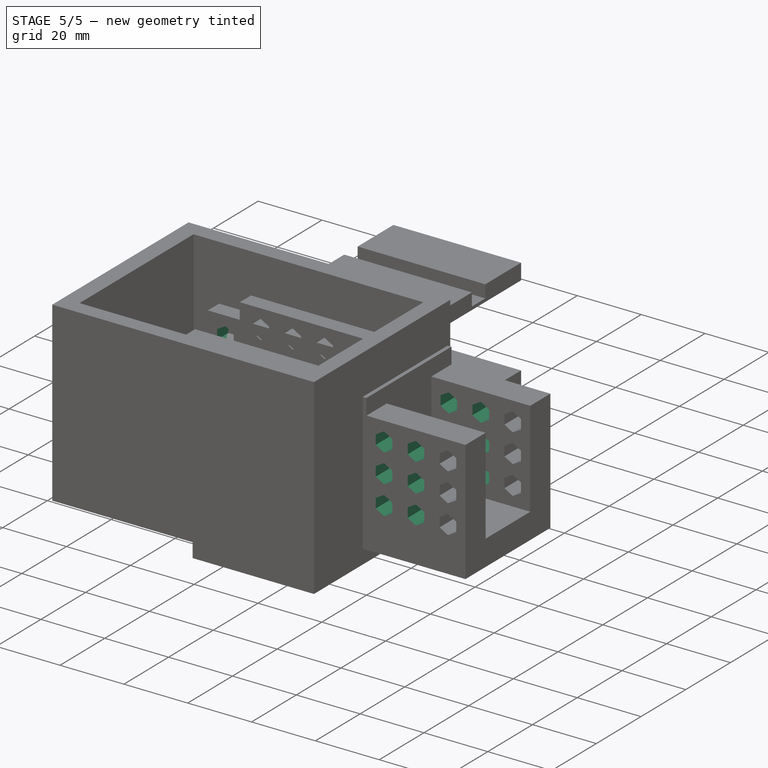
[diagram: stage 5 of 5 — iso view after this stage's code; geometry added in this stage tinted green]
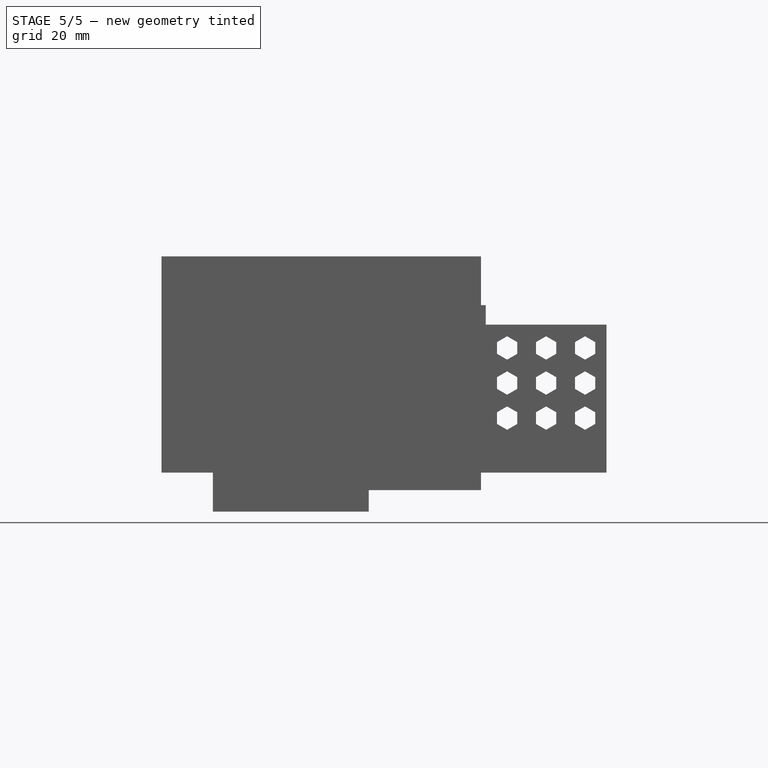
[diagram: stage 5 of 5 — front view after this stage's code; geometry added in this stage tinted green]
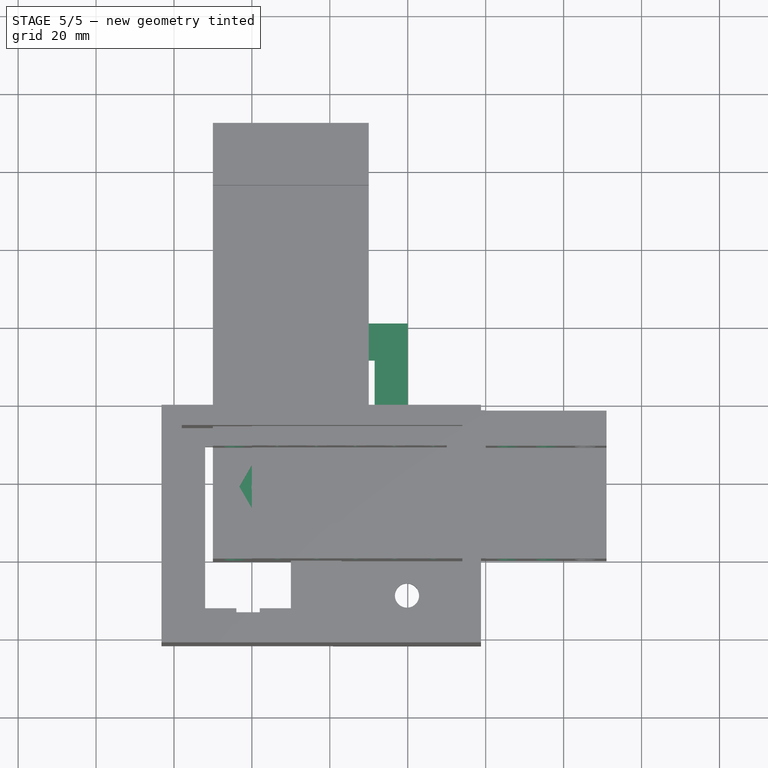
[diagram: stage 5 of 5 — top view after this stage's code; geometry added in this stage tinted green]
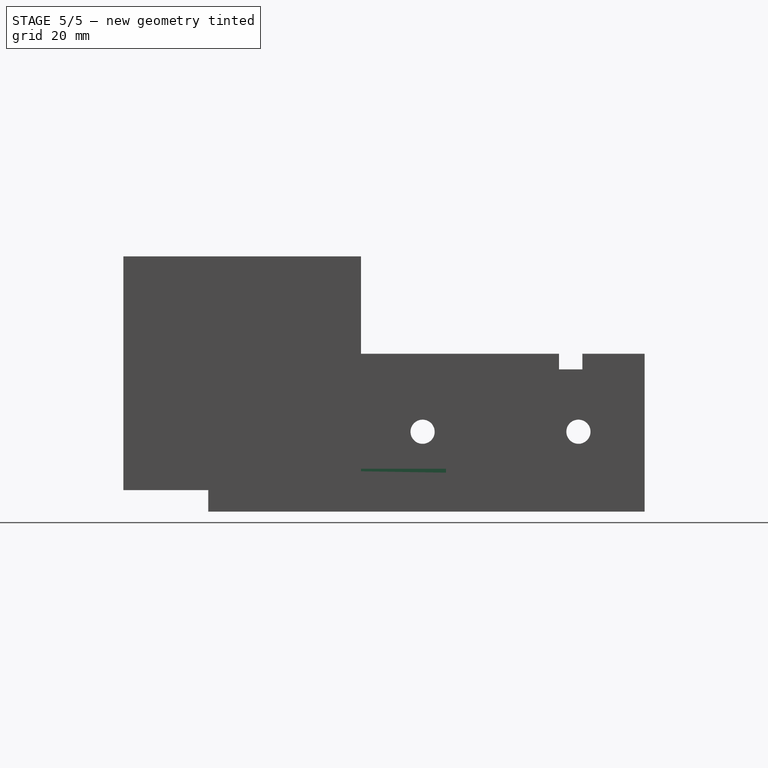
[diagram: stage 5 of 5 — right view after this stage's code; geometry added in this stage tinted green]
FEATURE [Sketcher::SketchObject] Sketch001
  ArcFitTolerance = 0
  AttachmentSupport = -> [XY_Plane001]
  FullyConstrained = true
  MakeInternals = false
  MapMode = 5
  sketch-geometry (20):
    g0: LineSegment StartX=-4 StartY=30.25 StartZ=0 EndX=2 EndY=30.25 EndZ=0
    g1: LineSegment StartX=10 StartY=29.25 StartZ=0 EndX=10 EndY=-12.25 EndZ=0
    g2: LineSegment StartX=-12 StartY=29.25 StartZ=0 EndX=-12 EndY=-12.25 EndZ=0
    g3: LineSegment StartX=2 StartY=-14.75 StartZ=0 EndX=2 EndY=-13.25 EndZ=0
    g4: LineSegment StartX=2 StartY=-13.25 StartZ=0 EndX=-4 EndY=-13.25 EndZ=0
    g5: LineSegment StartX=-4 StartY=-13.25 StartZ=0 EndX=-4 EndY=-14.75 EndZ=0
    g6: LineSegment StartX=8 StartY=-14.75 StartZ=0 EndX=2 EndY=-14.75 EndZ=0
    g7: LineSegment StartX=-4 StartY=-14.75 StartZ=0 EndX=-10 EndY=-14.75 EndZ=0
    g8: LineSegment StartX=-10 StartY=31.75 StartZ=0 EndX=-4 EndY=31.75 EndZ=0
    g9: LineSegment StartX=2 StartY=31.75 StartZ=0 EndX=8 EndY=31.75 EndZ=0
    g10: LineSegment StartX=2 StartY=31.75 StartZ=0 EndX=2 EndY=30.25 EndZ=0
    g11: LineSegment StartX=-4 StartY=31.75 StartZ=0 EndX=-4 EndY=30.25 EndZ=0
    g12: LineSegment StartX=8 StartY=31.75 StartZ=0 EndX=8 EndY=29.25 EndZ=0
    g13: LineSegment StartX=8 StartY=29.25 StartZ=0 EndX=10 EndY=29.25 EndZ=0
    g14: LineSegment StartX=-10 StartY=31.75 StartZ=0 EndX=-10 EndY=29.25 EndZ=0
    g15: LineSegment StartX=-10 StartY=29.25 StartZ=0 EndX=-12 EndY=29.25 EndZ=0
    g16: LineSegment StartX=8 StartY=-14.75 StartZ=0 EndX=8 EndY=-12.25 EndZ=0
    g17: LineSegment StartX=8 StartY=-12.25 StartZ=0 EndX=10 EndY=-12.25 EndZ=0
    g18: LineSegment StartX=-10 StartY=-14.75 StartZ=0 EndX=-10 EndY=-12.25 EndZ=0
    g19: LineSegment StartX=-10 StartY=-12.25 StartZ=0 EndX=-12 EndY=-12.25 EndZ=0
  constraints (61):
    c: Vertical(g2)
    c: Vertical(g5)
    c: Parallel(g2,g1)
    c: Equal(g2,g1)
    c: DistanceY(g1,g1) = 41.5
    c: DistanceX(g9,g1) = 8
    c: DistanceY(g-1,g1) = 29.25
    c: DistanceX(g-1,g1) = 10
    c: Parallel(g0,g-1)
    c: DistanceX(g0,g0) = 6
    c: Coincident(g3,g4)
    c: Coincident(g4,g5)
    c: Horizontal(g6)
    c: Parallel(g8,g9)
    c: Equal(g9,g8)
    c: Coincident(g3,g6)
    c: Coincident(g5,g7)
    c: DistanceX(g9,g9) = 6
    c: DistanceY(g-1,g0) = 30.25
    c: Parallel(g8,g7)
    c: Parallel(g7,g6)
    c: Equal(g7,g6)
    c: Equal(g6,g8)
    c: Coincident(g0,g10)
    c: Coincident(g9,g10)
    c: DistanceY(g10,g10) = 1.5
    c: Vertical(g14)
    c: Horizontal(g15)
    c: Parallel(g10,g11)
    c: Parallel(g11,g14)
    c: Parallel(g14,g12)
    c: Parallel(g12,g16)
    c: Parallel(g16,g3)
    c: Parallel(g5,g18)
    c: Coincident(g9,g12)
    c: Equal(g10,g11)
    c: Equal(g11,g5)
    c: Equal(g5,g3)
    c: Coincident(g0,g11)
    c: Coincident(g11,g8)
    c: DistanceY(g12,g12) = 2.5
    c: Equal(g12,g14)
    c: Equal(g14,g18)
    c: Equal(g18,g16)
    c: Coincident(g12,g13)
    c: Coincident(g1,g13)
    c: Coincident(g8,g14)
    c: Coincident(g14,g15)
    c: Coincident(g2,g15)
    c: Equal(g13,g15)
    c: Equal(g15,g17)
    c: Equal(g17,g19)
    c: Coincident(g1,g17)
    c: Coincident(g19,g2)
    c: Parallel(g17,g19)
    c: Coincident(g19,g18)
    c: Coincident(g17,g16)
    c: Coincident(g18,g7)
    c: Parallel(g4,g-1)
    c: Parallel(g19,g-1)
    c: DistanceX(g4,g4) = 6
FEATURE [PartDesign::AdditiveBox] Box002
  AttacherType = Attacher::AttachEngine3D
  AttachmentOffset = pos=(-23.2,-21.8,0) rot=(0,0,1;0rad)
  AttachmentSupport = -> [XY_Plane001]
  Height = 3.5
  Length = 44
  MapMode = 5
  Placement = pos=(-23.2,-21.8,0) rot=(0,0,1;0rad)
  Suppressed = false
  Width = 61
FEATURE [PartDesign::Pocket] Pocket001
  BaseFeature = -> Box002
  Direction = (0,0,-1)
  Length = 3.5
  Length2 = 5
  Placement = pos=(-23.2,-21.8,0) rot=(0,0,1;0rad)
  Profile = -> Sketch001
  ReferenceAxis = -> Sketch001 [N_Axis]
  Reversed = true
  Suppressed = false
  Type = 0
FEATURE [PartDesign::Body] Body001  label="socket cover"
  AllowCompound = false
  Group = -> [Sketch001,Box002,Pocket001]
  Origin = -> Origin001
  Placement = pos=(-68.5,-19.3,9) rot=(0.707107,0.707107,0;3.14159rad)
  Tip = -> Pocket001
FEATURE [PartDesign::AdditiveBox] Box003
  AttacherType = Attacher::AttachEngine3D
  AttachmentOffset = pos=(-4,0,0) rot=(0,0,1;0rad)
  AttachmentSupport = -> [XY_Plane002]
  Height = 1
  Length = 44
  MapMode = 5
  Placement = pos=(-4,0,0) rot=(0,0,1;0rad)
  Suppressed = false
  Width = 61
FEATURE [PartDesign::SubtractiveBox] Box004
  AttacherType = Attacher::AttachEngine3D
  AttachmentOffset = pos=(9,9,0) rot=(0,0,1;0rad)
  AttachmentSupport = -> [XY_Plane002]
  BaseFeature = -> Box003
  Height = 1
  Length = 22.5
  MapMode = 5
  Placement = pos=(9,9,0) rot=(0,0,1;0rad)
  Suppressed = false
  Width = 42.5
FEATURE [PartDesign::LinearPattern] LinearPattern
  BaseFeature = -> Pocket002
  Direction = -> Sketch006 [H_Axis]
  Length = 100
  Mode = 0
  Occurrences = 11
  Offset = 10
  Originals = -> [Pocket002]
  Placement = pos=(-10,29,8) rot=(0,0,1;0rad)
  Suppressed = false
  TransformMode = 0
FEATURE [Sketcher::SketchObject] Sketch007
  ArcFitTolerance = 1e-06
  AttachmentSupport = -> [LinearPattern]
  FullyConstrained = true
  MakeInternals = false
  MapMode = 5
  Placement = pos=(-10,29,8) rot=(0,0,1;0rad)
  sketch-geometry (2):
    g0: Circle CenterX=13 CenterY=-10 CenterZ=0 NormalX=0 NormalY=0 NormalZ=1 AngleXU=0 Radius=3.1
    g1: Circle CenterX=40 CenterY=-10 CenterZ=0 NormalX=0 NormalY=0 NormalZ=1 AngleXU=0 Radius=3.1
  constraints (6):
    c: Diameter(g0) = 6.2
    c: Equal(g0,g1)
    c: Distance(g0,g-2) = 13
    c: Distance(g1,g-2) = 40
    c: Distance(g1,g-1) = 10
    c: Distance(g0,g-1) = 10
FEATURE [PartDesign::Pocket] Pocket003
  BaseFeature = -> LinearPattern
  Direction = (0,0,-1)
  Length = 5
  Length2 = 5
  Placement = pos=(-10,29,8) rot=(0,0,1;0rad)
  Profile = -> Sketch007
  ReferenceAxis = -> Sketch007 [N_Axis]
  Suppressed = false
  Type = 1
FEATURE [Sketcher::SketchObject] Sketch008
  ArcFitTolerance = 1e-06
  AttachmentSupport = -> [Pocket003]
  FullyConstrained = true
  MakeInternals = false
  MapMode = 5
  Placement = pos=(-10,29,8) rot=(0,0,1;0rad)
  sketch-geometry (14):
    g0: LineSegment StartX=19.2 StartY=-10 StartZ=0 EndX=16.1 EndY=-4.63064 EndZ=0
    g1: LineSegment StartX=16.1 StartY=-4.63064 StartZ=0 EndX=9.9 EndY=-4.63064 EndZ=0
    g2: LineSegment StartX=9.9 StartY=-4.63064 StartZ=0 EndX=6.8 EndY=-10 EndZ=0
    g3: LineSegment StartX=6.8 StartY=-10 StartZ=0 EndX=9.9 EndY=-15.3694 EndZ=0
    g4: LineSegment StartX=9.9 StartY=-15.3694 StartZ=0 EndX=16.1 EndY=-15.3694 EndZ=0
    g5: LineSegment StartX=16.1 StartY=-15.3694 StartZ=0 EndX=19.2 EndY=-10 EndZ=0
    g6: Circle [constr] CenterX=13 CenterY=-10 CenterZ=0 NormalX=0 NormalY=0 NormalZ=1 AngleXU=0 Radius=6.2
    g7: LineSegment StartX=43.1 StartY=-15.3694 StartZ=0 EndX=46.2 EndY=-10 EndZ=0
    g8: LineSegment StartX=46.2 StartY=-10 StartZ=0 EndX=43.1 EndY=-4.63064 EndZ=0
    g9: LineSegment StartX=43.1 StartY=-4.63064 StartZ=0 EndX=36.9 EndY=-4.63064 EndZ=0
    g10: LineSegment StartX=36.9 StartY=-4.63064 StartZ=0 EndX=33.8 EndY=-10 EndZ=0
    g11: LineSegment StartX=33.8 StartY=-10 StartZ=0 EndX=36.9 EndY=-15.3694 EndZ=0
    g12: LineSegment StartX=36.9 StartY=-15.3694 StartZ=0 EndX=43.1 EndY=-15.3694 EndZ=0
    g13: Circle [constr] CenterX=40 CenterY=-10 CenterZ=0 NormalX=0 NormalY=0 NormalZ=1 AngleXU=0 Radius=6.2
  constraints (34):
    c: Coincident(g0,g1)
    c: Coincident(g1,g2)
    c: Coincident(g2,g3)
    c: Coincident(g3,g4)
    c: Coincident(g4,g5)
    c: Coincident(g5,g0)
    c: Equal(g0, g1-g5) x5
    c: PointOnObject(g0,g6)
    c: PointOnObject(g1,g6)
    c: PointOnObject(g2,g6)
    c: PointOnObject(g3,g6)
    c: PointOnObject(g4,g6)
    c: PointOnObject(g5,g6)
    c: Radius(g6) = 6.2
    c: Coincident(g7,g8)
    c: Coincident(g8,g9)
    c: Coincident(g9,g10)
    c: Coincident(g10,g11)
    c: Coincident(g11,g12)
    c: Coincident(g12,g7)
    c: Equal(g7, g8-g12) x5
    c: PointOnObject(g7,g13)
    c: PointOnObject(g8,g13)
    c: PointOnObject(g9,g13)
    c: PointOnObject(g10,g13)
    c: PointOnObject(g11,g13)
    c: PointOnObject(g12,g13)
    c: Equal(g6,g13)
    c: Parallel(g1,g-1)
    c: Parallel(g9,g1)
    c: DistanceY(g6,g-1) = 10
    c: DistanceX(g-1,g6) = 13
    c: DistanceY(g13,g-1) = 10
    c: DistanceX(g-1,g13) = 40
FEATURE [PartDesign::Pocket] Pocket004
  BaseFeature = -> Pocket003
  Direction = (0,0,-1)
  Length = 4
  Length2 = 5
  Placement = pos=(-10,29,8) rot=(0,0,1;0rad)
  Profile = -> Sketch008
  ReferenceAxis = -> Sketch008 [N_Axis]
  Suppressed = false
  Type = 0
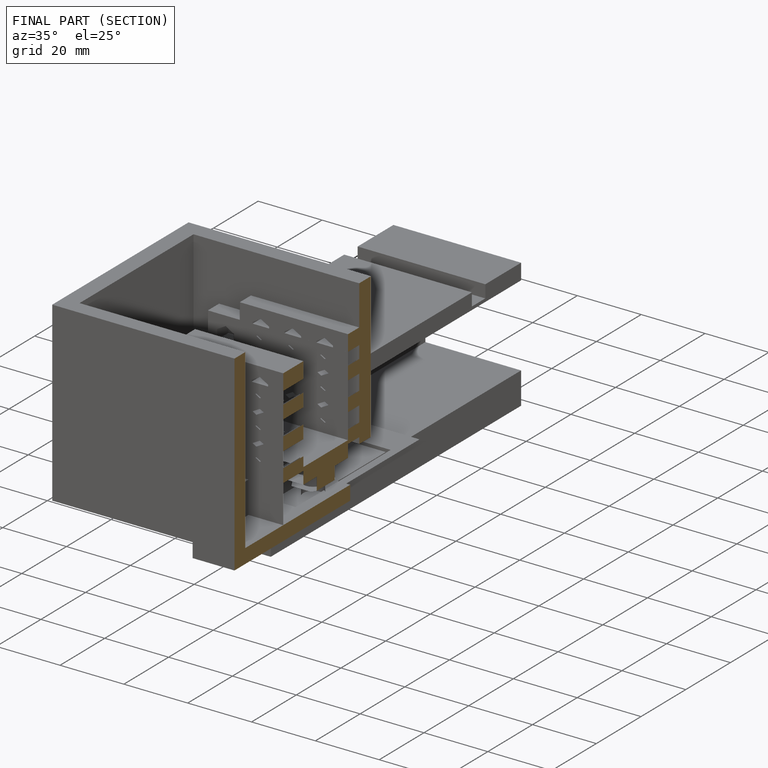
[diagram: finished part — half-section view (interior)]
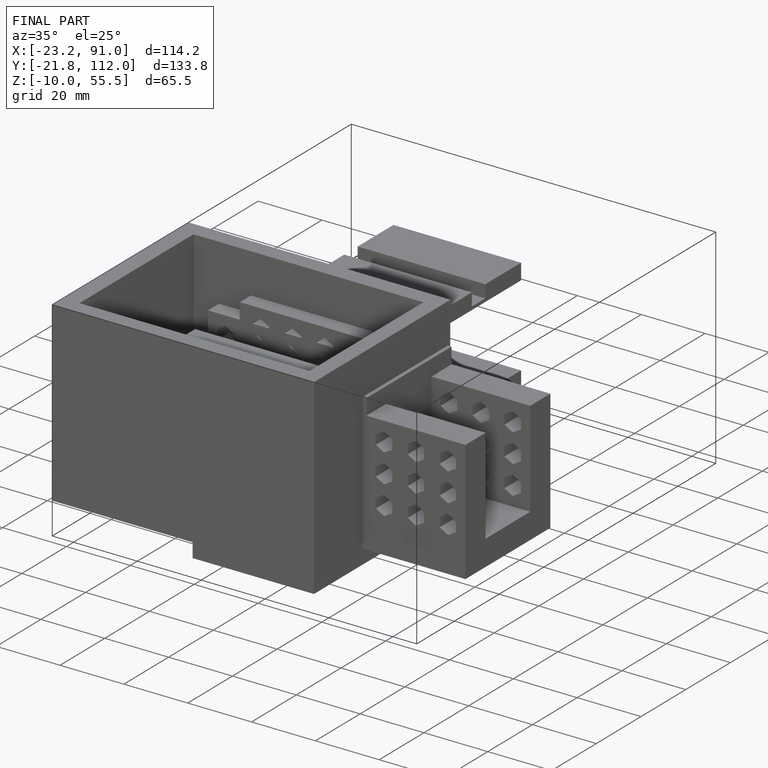
[diagram: finished part — iso view with bounding-box wireframe]
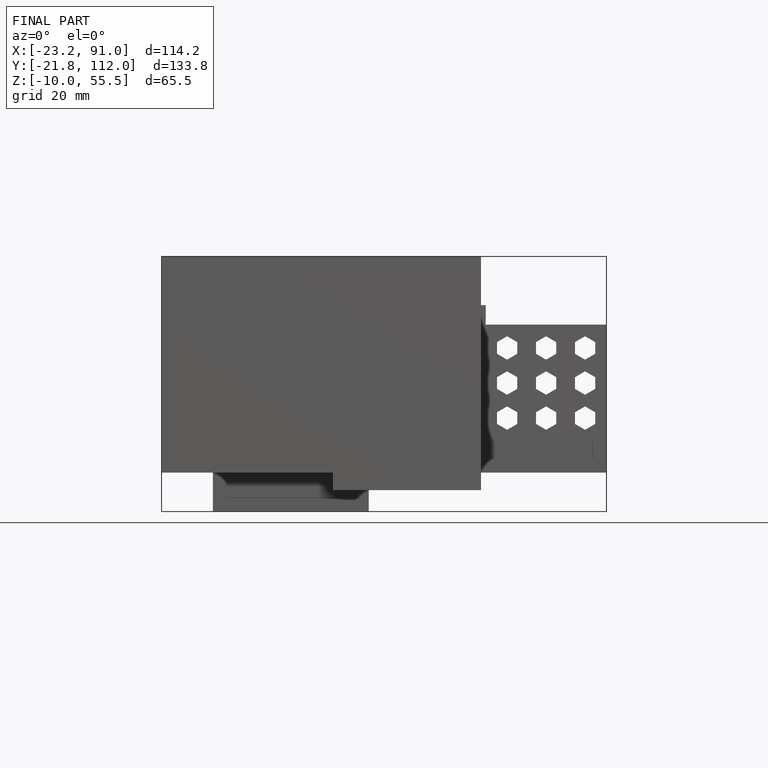
[diagram: finished part — front view with bounding-box wireframe]
